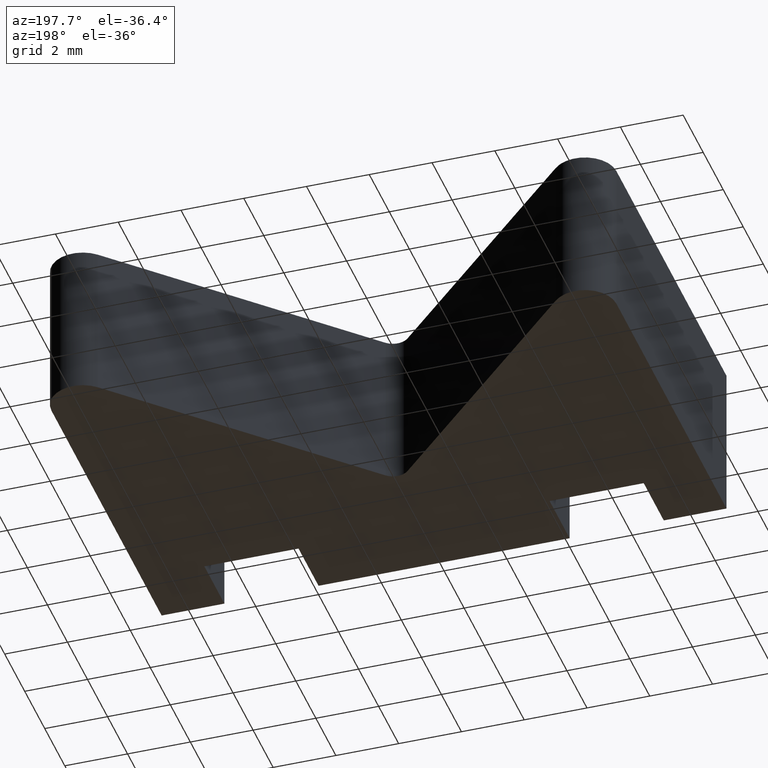
[diagram: clean part render]
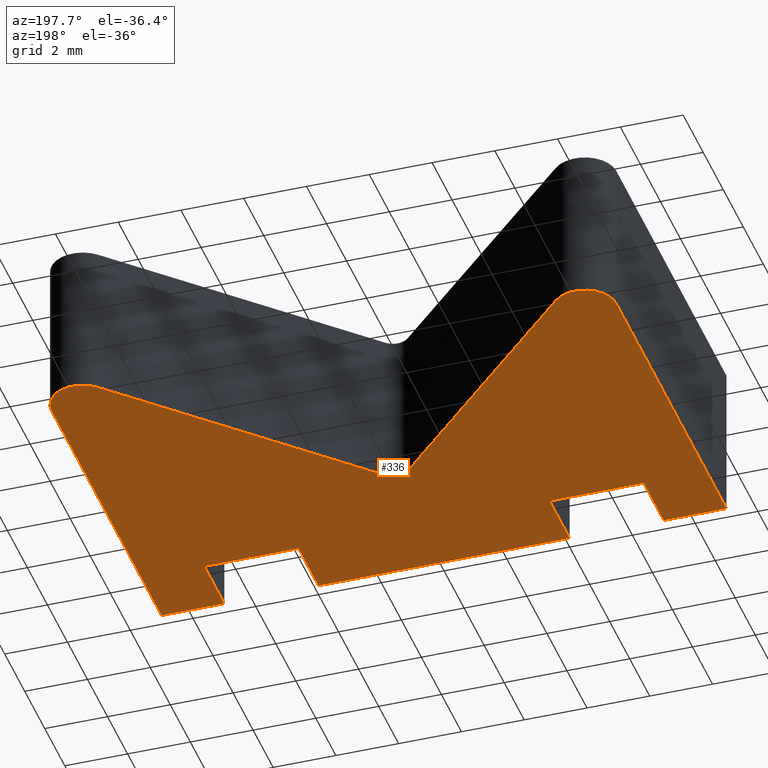
[diagram: same view with one face highlighted and labeled with its STEP entity id]
A machine part, auxiliary view. The second image highlights one B-rep face of the part: STEP entity #336.
In plain terms, the highlighted planar face has unit normal (0, 0, 1).
Its self-contained STEP definition (entity closure, byte-faithful):
#19=FACE_OUTER_BOUND('',#37,.T.);
#37=EDGE_LOOP('',(#225,#226,#227,#228,#229,#230,#231,#232,#233,#234,#235,
#236,#237,#238,#239,#240));
#55=CIRCLE('',#378,1.);
#56=CIRCLE('',#379,0.500000000000001);
#57=CIRCLE('',#380,1.);
#61=LINE('',#497,#103);
#62=LINE('',#499,#104);
#63=LINE('',#501,#105);
#64=LINE('',#503,#106);
#65=LINE('',#505,#107);
#66=LINE('',#507,#108);
#67=LINE('',#509,#109);
#68=LINE('',#511,#110);
#69=LINE('',#513,#111);
#70=LINE('',#515,#112);
#71=LINE('',#517,#113);
#72=LINE('',#521,#114);
#73=LINE('',#525,#115);
#103=VECTOR('',#405,10.);
#104=VECTOR('',#406,10.);
#105=VECTOR('',#407,10.);
#106=VECTOR('',#408,10.);
#107=VECTOR('',#409,10.);
#108=VECTOR('',#410,10.);
#109=VECTOR('',#411,10.);
#110=VECTOR('',#412,10.);
#111=VECTOR('',#413,10.);
#112=VECTOR('',#414,10.);
#113=VECTOR('',#415,10.);
#114=VECTOR('',#418,10.);
#115=VECTOR('',#421,10.);
#145=VERTEX_POINT('',#495);
#146=VERTEX_POINT('',#496);
#147=VERTEX_POINT('',#498);
#148=VERTEX_POINT('',#500);
#149=VERTEX_POINT('',#502);
#150=VERTEX_POINT('',#504);
#151=VERTEX_POINT('',#506);
#152=VERTEX_POINT('',#508);
#153=VERTEX_POINT('',#510);
#154=VERTEX_POINT('',#512);
#155=VERTEX_POINT('',#514);
#156=VERTEX_POINT('',#516);
#157=VERTEX_POINT('',#518);
#158=VERTEX_POINT('',#520);
#159=VERTEX_POINT('',#522);
#160=VERTEX_POINT('',#524);
#177=EDGE_CURVE('',#145,#146,#61,.T.);
#178=EDGE_CURVE('',#147,#145,#62,.T.);
#179=EDGE_CURVE('',#148,#147,#63,.T.);
#180=EDGE_CURVE('',#149,#148,#64,.T.);
#181=EDGE_CURVE('',#150,#149,#65,.T.);
#182=EDGE_CURVE('',#151,#150,#66,.T.);
#183=EDGE_CURVE('',#152,#151,#67,.T.);
#184=EDGE_CURVE('',#153,#152,#68,.T.);
#185=EDGE_CURVE('',#154,#153,#69,.T.);
#186=EDGE_CURVE('',#155,#154,#70,.T.);
#187=EDGE_CURVE('',#156,#155,#71,.T.);
#188=EDGE_CURVE('',#157,#156,#55,.T.);
#189=EDGE_CURVE('',#158,#157,#72,.T.);
#190=EDGE_CURVE('',#159,#158,#56,.T.);
#191=EDGE_CURVE('',#160,#159,#73,.T.);
#192=EDGE_CURVE('',#146,#160,#57,.T.);
#225=ORIENTED_EDGE('',*,*,#177,.F.);
#226=ORIENTED_EDGE('',*,*,#178,.F.);
#227=ORIENTED_EDGE('',*,*,#179,.F.);
#228=ORIENTED_EDGE('',*,*,#180,.F.);
#229=ORIENTED_EDGE('',*,*,#181,.F.);
#230=ORIENTED_EDGE('',*,*,#182,.F.);
#231=ORIENTED_EDGE('',*,*,#183,.F.);
#232=ORIENTED_EDGE('',*,*,#184,.F.);
#233=ORIENTED_EDGE('',*,*,#185,.F.);
#234=ORIENTED_EDGE('',*,*,#186,.F.);
#235=ORIENTED_EDGE('',*,*,#187,.F.);
#236=ORIENTED_EDGE('',*,*,#188,.F.);
#237=ORIENTED_EDGE('',*,*,#189,.F.);
#238=ORIENTED_EDGE('',*,*,#190,.F.);
#239=ORIENTED_EDGE('',*,*,#191,.F.);
#240=ORIENTED_EDGE('',*,*,#192,.F.);
#321=PLANE('',#377);
#336=ADVANCED_FACE('',(#19),#321,.F.);
#377=AXIS2_PLACEMENT_3D('',#494,#403,#404);
#378=AXIS2_PLACEMENT_3D('',#519,#416,#417);
#379=AXIS2_PLACEMENT_3D('',#523,#419,#420);
#380=AXIS2_PLACEMENT_3D('',#526,#422,#423);
#403=DIRECTION('center_axis',(0.,0.,1.));
#404=DIRECTION('ref_axis',(1.,0.,0.));
#405=DIRECTION('',(0.,1.,0.));
#406=DIRECTION('',(1.,0.,0.));
#407=DIRECTION('',(0.,-1.,0.));
#408=DIRECTION('',(1.,0.,0.));
#409=DIRECTION('',(0.,1.,0.));
#410=DIRECTION('',(1.,0.,0.));
#411=DIRECTION('',(0.,-1.,0.));
#412=DIRECTION('',(1.,0.,0.));
#413=DIRECTION('',(0.,1.,0.));
#414=DIRECTION('',(1.,0.,0.));
#415=DIRECTION('',(0.,-1.,0.));
#416=DIRECTION('center_axis',(0.,0.,1.));
#417=DIRECTION('ref_axis',(-0.707106781186548,-0.707106781186548,0.));
#418=DIRECTION('',(-0.707106781186547,0.707106781186548,0.));
#419=DIRECTION('center_axis',(0.,0.,-1.));
#420=DIRECTION('ref_axis',(-0.707106781186547,-0.707106781186548,0.));
#421=DIRECTION('',(-0.707106781186547,-0.707106781186548,0.));
#422=DIRECTION('center_axis',(0.,0.,1.));
#423=DIRECTION('ref_axis',(-1.,0.,0.));
#494=CARTESIAN_POINT('Origin',(-2.77555756156289E-16,2.9426609055108,-2.5));
#495=CARTESIAN_POINT('',(9.,-2.,-2.5));
#496=CARTESIAN_POINT('',(9.,9.,-2.5));
#497=CARTESIAN_POINT('',(9.,9.,-2.5));
#498=CARTESIAN_POINT('',(7.,-2.,-2.5));
#499=CARTESIAN_POINT('',(9.,-2.,-2.5));
#500=CARTESIAN_POINT('',(7.,0.,-2.5));
#501=CARTESIAN_POINT('',(7.,-2.,-2.5));
#502=CARTESIAN_POINT('',(4.,0.,-2.5));
#503=CARTESIAN_POINT('',(7.,0.,-2.5));
#504=CARTESIAN_POINT('',(4.,-2.,-2.5));
#505=CARTESIAN_POINT('',(4.,0.,-2.5));
#506=CARTESIAN_POINT('',(-4.,-2.,-2.5));
#507=CARTESIAN_POINT('',(4.,-2.,-2.5));
#508=CARTESIAN_POINT('',(-4.,0.,-2.5));
#509=CARTESIAN_POINT('',(-4.,-2.,-2.5));
#510=CARTESIAN_POINT('',(-7.,0.,-2.5));
#511=CARTESIAN_POINT('',(-4.,0.,-2.5));
#512=CARTESIAN_POINT('',(-7.,-2.,-2.5));
#513=CARTESIAN_POINT('',(-7.,0.,-2.5));
#514=CARTESIAN_POINT('',(-9.,-2.,-2.5));
#515=CARTESIAN_POINT('',(-7.,-2.,-2.5));
#516=CARTESIAN_POINT('',(-9.,9.,-2.5));
#517=CARTESIAN_POINT('',(-9.,-2.,-2.5));
#518=CARTESIAN_POINT('',(-7.29289321881345,9.70710678118655,-2.5));
#519=CARTESIAN_POINT('Origin',(-8.,9.,-2.5));
#520=CARTESIAN_POINT('',(-0.353553390593275,2.76776695296637,-2.5));
#521=CARTESIAN_POINT('',(-7.29289321881345,9.70710678118655,-2.5));
#522=CARTESIAN_POINT('',(0.353553390593275,2.76776695296637,-2.5));
#523=CARTESIAN_POINT('Origin',(0.,3.12132034355965,-2.5));
#524=CARTESIAN_POINT('',(7.29289321881345,9.70710678118655,-2.5));
#525=CARTESIAN_POINT('',(0.353553390593275,2.76776695296637,-2.5));
#526=CARTESIAN_POINT('Origin',(8.,9.,-2.5));